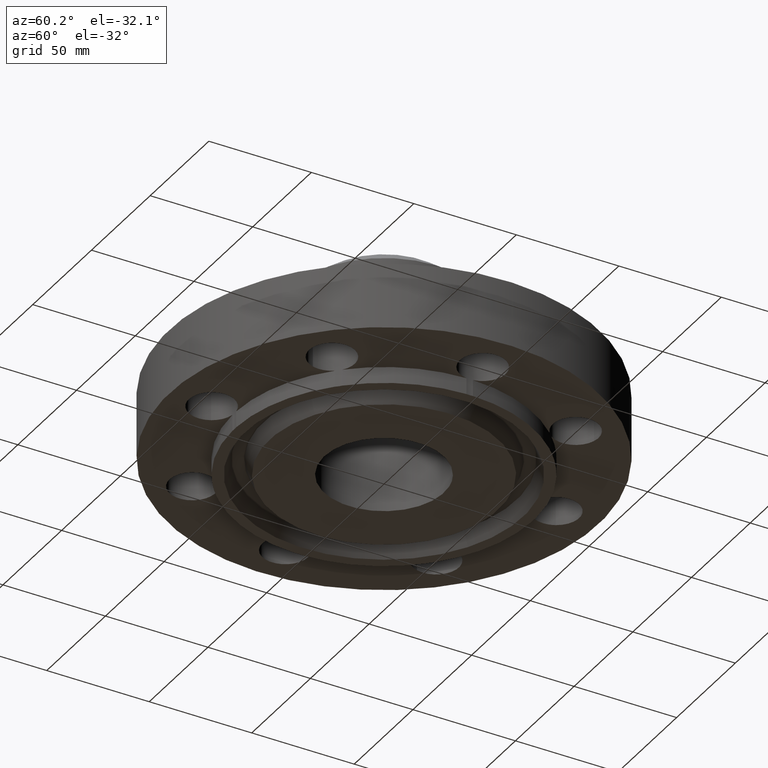
[diagram: clean part render]
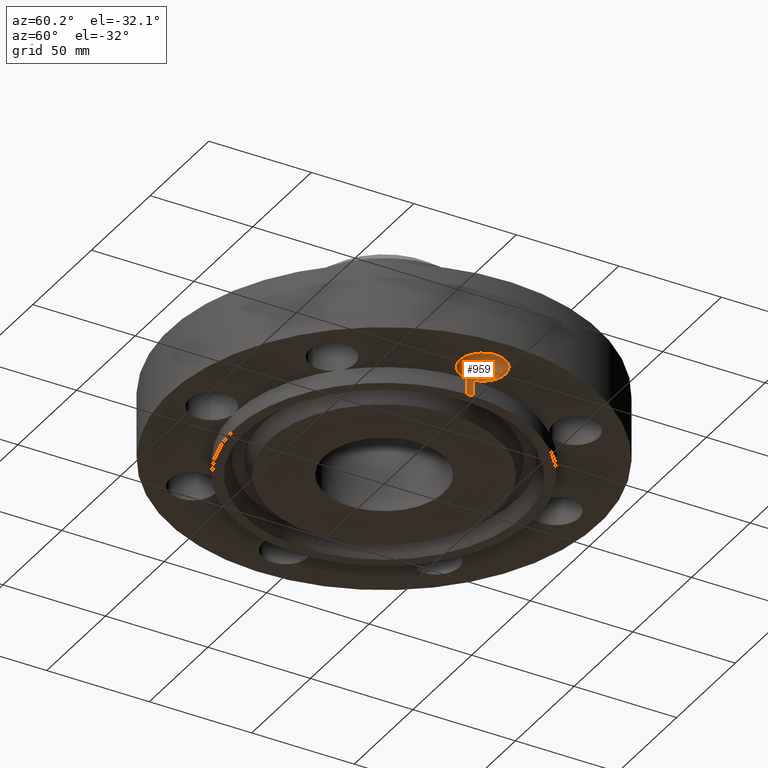
[diagram: same view with one face highlighted and labeled with its STEP entity id]
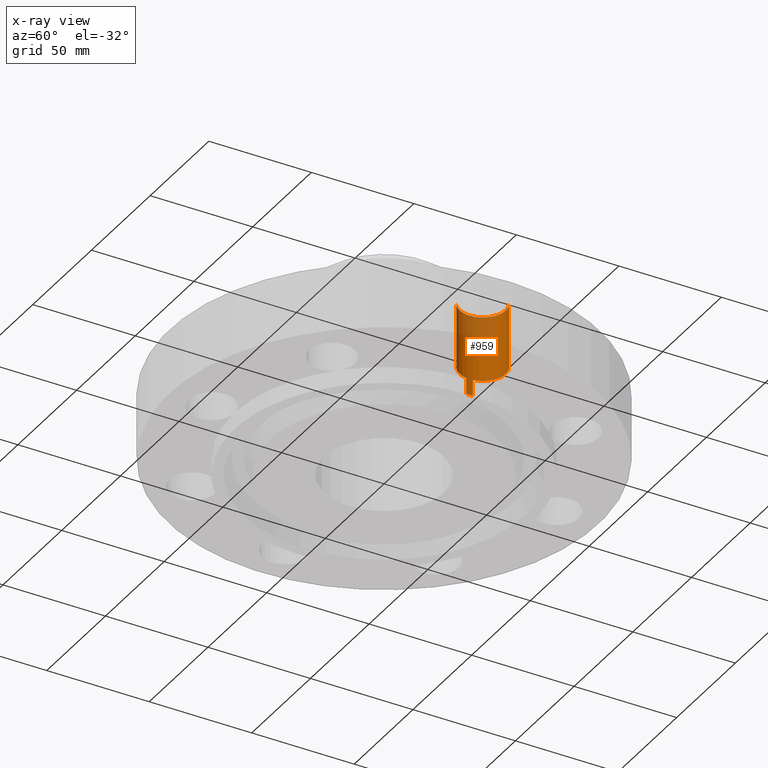
[diagram: x-ray of the same camera — body ghosted, the highlighted face saturated]
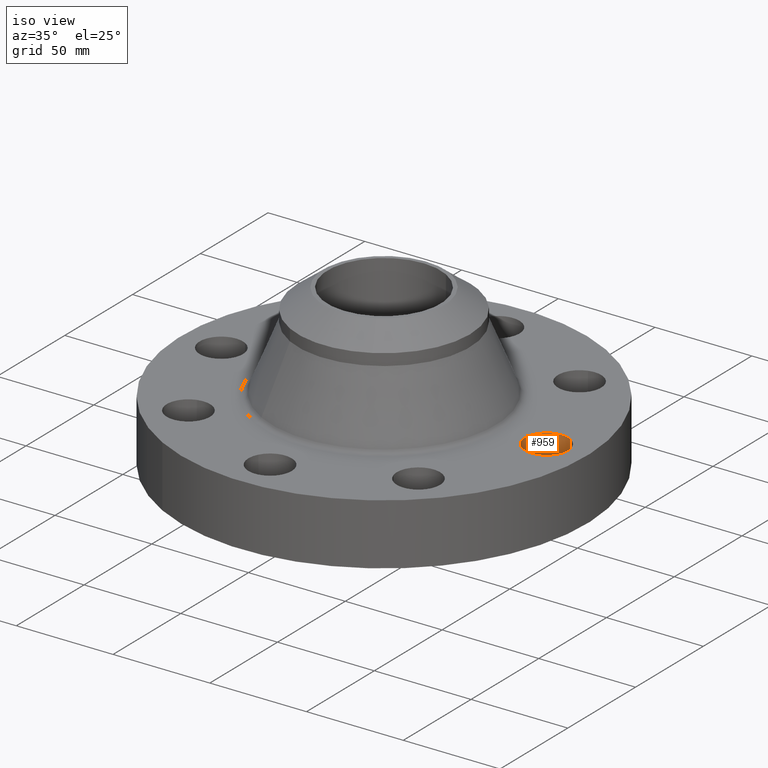
[diagram: same view with one face highlighted and labeled with its STEP entity id]
A machine part, auxiliary view. The second image highlights one B-rep face of the part: STEP entity #959.
The next image is the same camera in x-ray: the body ghosted, the highlighted face saturated — about 26% of this face is hidden behind the body in this view.
A second angle (iso view) of the same face is appended — the face is thin or edge-on in the first view.
In plain terms, the highlighted cylindrical surface (edge-blend (fillet) strip) has radius 11.176 mm, axis along (0, -0, -1).
Its self-contained STEP definition (entity closure, byte-faithful):
#196=AXIS2_PLACEMENT_3D('Circle Axis2P3D',#194,#195,$) ;
#210=AXIS2_PLACEMENT_3D('Circle Axis2P3D',#208,#209,$) ;
#509=AXIS2_PLACEMENT_3D('Circle Axis2P3D',#507,#508,$) ;
#688=AXIS2_PLACEMENT_3D('Circle Axis2P3D',#686,#687,$) ;
#932=AXIS2_PLACEMENT_3D('Cylinder Axis2P3D',#929,#930,#931) ;
#189=CARTESIAN_POINT('Vertex',(2.87433912388,-0.061640903685,-2.60212498967E-011)) ;
#194=CARTESIAN_POINT('Axis2P3D Location',(3.30999999995,-9.51495050728E-011,0.)) ;
#198=CARTESIAN_POINT('Vertex',(3.09905276304,-0.386136327252,0.)) ;
#205=CARTESIAN_POINT('Vertex',(3.52094723696,0.386136327242,0.)) ;
#208=CARTESIAN_POINT('Axis2P3D Location',(3.31000000003,-8.18746645285E-012,0.)) ;
#212=CARTESIAN_POINT('Vertex',(2.87433912388,0.061640903685,-2.60212498967E-011)) ;
#507=CARTESIAN_POINT('Axis2P3D Location',(3.31000000001,-1.66501982805E-012,1.25000000001)) ;
#511=CARTESIAN_POINT('Vertex',(3.09905276303,-0.386136327236,1.24999999999)) ;
#513=CARTESIAN_POINT('Vertex',(3.520947237,0.386136327233,1.24999999999)) ;
#683=CARTESIAN_POINT('Vertex',(2.87433912388,0.061640903685,-0.312999999983)) ;
#686=CARTESIAN_POINT('Axis2P3D Location',(3.30999999573,1.46668329275E-012,-0.313000000001)) ;
#690=CARTESIAN_POINT('Vertex',(2.87433912388,-0.061640903685,-0.312999999983)) ;
#910=CARTESIAN_POINT('Line Origine',(2.87433912388,-0.061640903685,-0.156500000005)) ;
#929=CARTESIAN_POINT('Axis2P3D Location',(3.31000000001,2.0267904526E-016,1.24606299213)) ;
#934=CARTESIAN_POINT('Line Origine',(3.09905276302,-0.386136327233,0.468500000021)) ;
#939=CARTESIAN_POINT('Line Origine',(2.87433912388,0.0616409036858,0.468500000021)) ;
#944=CARTESIAN_POINT('Line Origine',(3.520947237,0.386136327233,0.468500000021)) ;
#195=DIRECTION('Axis2P3D Direction',(0.,0.,-0.0393700787402)) ;
#209=DIRECTION('Axis2P3D Direction',(0.,0.,-0.0393700787402)) ;
#508=DIRECTION('Axis2P3D Direction',(0.,0.,-0.0393700787402)) ;
#687=DIRECTION('Axis2P3D Direction',(0.,0.,-0.0393700787402)) ;
#911=DIRECTION('Vector Direction',(0.,0.,-0.0393700787402)) ;
#930=DIRECTION('Axis2P3D Direction',(0.,-0.,-0.0393700787402)) ;
#931=DIRECTION('Axis2P3D XDirection',(-0.0188750212049,-0.0345504945626,0.)) ;
#935=DIRECTION('Vector Direction',(0.,0.,-0.0393700787402)) ;
#940=DIRECTION('Vector Direction',(0.,0.,-0.0393700787402)) ;
#945=DIRECTION('Vector Direction',(0.,0.,-0.0393700787402)) ;
#912=VECTOR('Line Direction',#911,0.0393700787402) ;
#936=VECTOR('Line Direction',#935,0.0393700787402) ;
#941=VECTOR('Line Direction',#940,0.0393700787402) ;
#946=VECTOR('Line Direction',#945,0.0393700787402) ;
#950=ORIENTED_EDGE('',*,*,#938,.F.) ;
#951=ORIENTED_EDGE('',*,*,#200,.T.) ;
#952=ORIENTED_EDGE('',*,*,#914,.T.) ;
#953=ORIENTED_EDGE('',*,*,#692,.T.) ;
#954=ORIENTED_EDGE('',*,*,#943,.F.) ;
#955=ORIENTED_EDGE('',*,*,#214,.T.) ;
#956=ORIENTED_EDGE('',*,*,#948,.T.) ;
#957=ORIENTED_EDGE('',*,*,#515,.F.) ;
#959=ADVANCED_FACE('PartBody',(#958),#933,.F.) ;
#197=CIRCLE('generated circle',#196,0.439999999898) ;
#211=CIRCLE('generated circle',#210,0.439999999991) ;
#510=CIRCLE('generated circle',#509,0.440000000002) ;
#689=CIRCLE('generated circle',#688,0.439999995725) ;
#933=CYLINDRICAL_SURFACE('generated cylinder',#932,0.440000000002) ;
#200=EDGE_CURVE('',#199,#190,#197,.T.) ;
#214=EDGE_CURVE('',#213,#206,#211,.T.) ;
#515=EDGE_CURVE('',#512,#514,#510,.T.) ;
#692=EDGE_CURVE('',#691,#684,#689,.T.) ;
#914=EDGE_CURVE('',#190,#691,#913,.T.) ;
#938=EDGE_CURVE('',#199,#512,#937,.F.) ;
#943=EDGE_CURVE('',#213,#684,#942,.T.) ;
#948=EDGE_CURVE('',#206,#514,#947,.F.) ;
#949=EDGE_LOOP('',(#950,#951,#952,#953,#954,#955,#956,#957)) ;
#958=FACE_OUTER_BOUND('',#949,.T.) ;
#913=LINE('Line',#910,#912) ;
#937=LINE('Line',#934,#936) ;
#942=LINE('Line',#939,#941) ;
#947=LINE('Line',#944,#946) ;
#190=VERTEX_POINT('',#189) ;
#199=VERTEX_POINT('',#198) ;
#206=VERTEX_POINT('',#205) ;
#213=VERTEX_POINT('',#212) ;
#512=VERTEX_POINT('',#511) ;
#514=VERTEX_POINT('',#513) ;
#684=VERTEX_POINT('',#683) ;
#691=VERTEX_POINT('',#690) ;